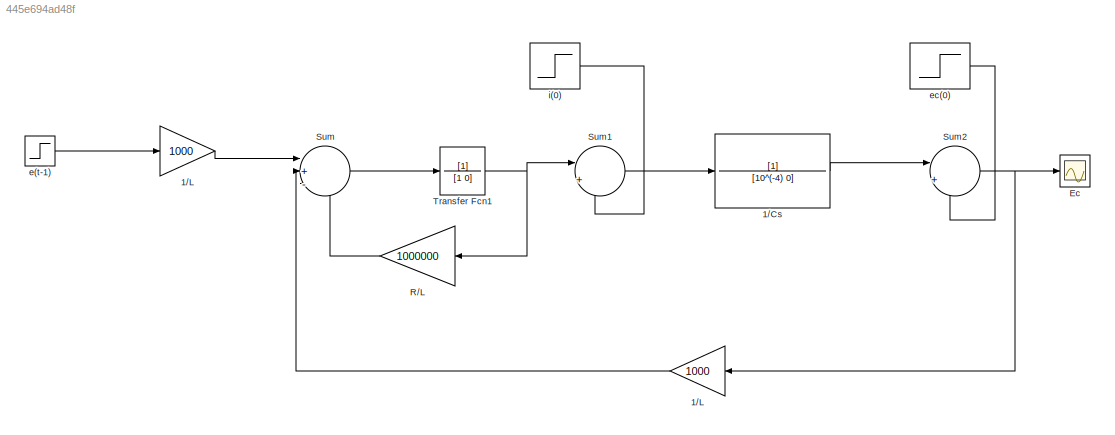
MODEL slx_445e694ad48f
KIND model
CONFIG AbsTol = auto
CONFIG EnableMultiTasking = off
CONFIG FixedStep = auto
CONFIG MaxStep = auto
CONFIG MinStep = auto
CONFIG RelTol = 1e-3
CONFIG SampleTimeConstraint = Unconstrained
CONFIG SolverName = VariableStepAuto
CONFIG StartTime = 0.0
CONFIG StopTime = 3.0
BLOCK [TransferFcn] 1//Cs
  Denominator = [10^(-4) 0]
BLOCK [Gain] 1//L
  Gain = 1000
BLOCK [Gain] 1//L 
  Gain = 1000
BLOCK [Scope] Ec
  Floating = off
  NumInputPorts = 1
  ScopeSpecificationString = Simulink.scopes.TimeScopeBlockCfg('CurrentConfiguration', extmgr.ConfigurationSet(extmgr.Configuration('Core','General UI',true),extmgr.Configuration('Core','Source UI',true),extmgr.Configuration('Sources','WiredSimulink',true),extmgr.Configuration('Visuals','Time Domain',true,'SerializedDisplays',{struct('MinYLimReal','0.3125','MaxYLimReal','2.17729','YLabelReal','','MinYLimMag','0.3125','MaxYLim...<+1337ch>
BLOCK [Gain] R//L
  Gain = 1000000
BLOCK [Sum] Sum
  Inputs = |+--
BLOCK [Sum] Sum1
  Inputs = |++
BLOCK [Sum] Sum2
  Inputs = |++
BLOCK [TransferFcn] Transfer Fcn1
  Denominator = [1 0]
BLOCK [Step] e(t-1)
  SampleTime = 0
BLOCK [Step] ec(0)
  After = 0.5
  SampleTime = 0
  Time = 0
BLOCK [Step] i(0)
  After = 0.001
  SampleTime = 0
  Time = 0
LINE 1//Cs:1 -> Sum2:1
LINE 1//L :1 -> Sum:1
LINE 1//L:1 -> Sum:2
LINE R//L:1 -> Sum:3
LINE Sum1:1 -> 1//Cs:1
NET Sum2:1 -> 1//L:1, Ec:1
LINE Sum:1 -> Transfer Fcn1:1
NET Transfer Fcn1:1 -> R//L:1, Sum1:1
LINE e(t-1):1 -> 1//L :1
LINE ec(0):1 -> Sum2:2
LINE i(0):1 -> Sum1:2
note: NET lines group one-source signal fan-out (src -> all destinations, sorted); 1:1 wires keep LINE
